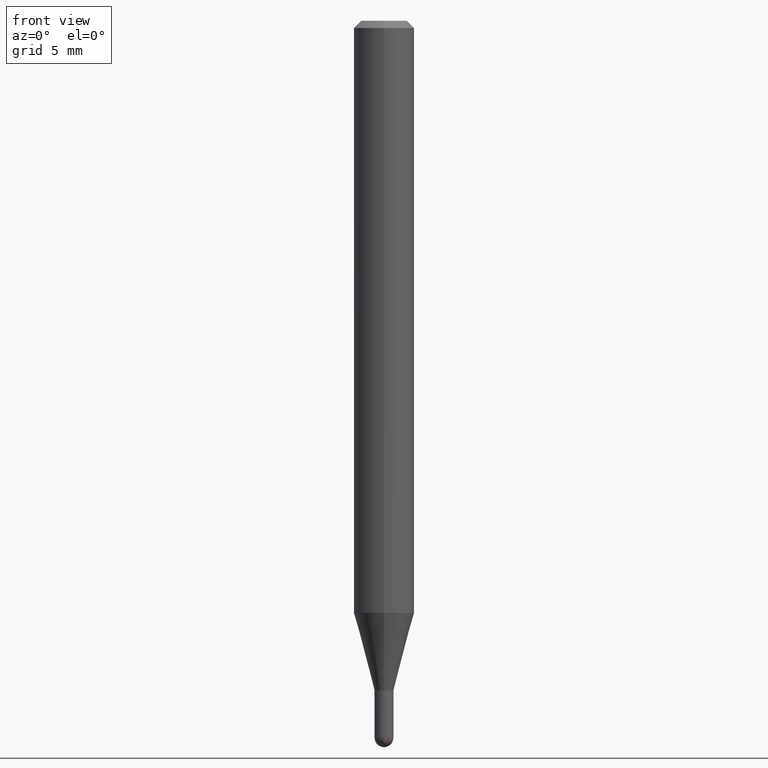
[diagram: clean part render]
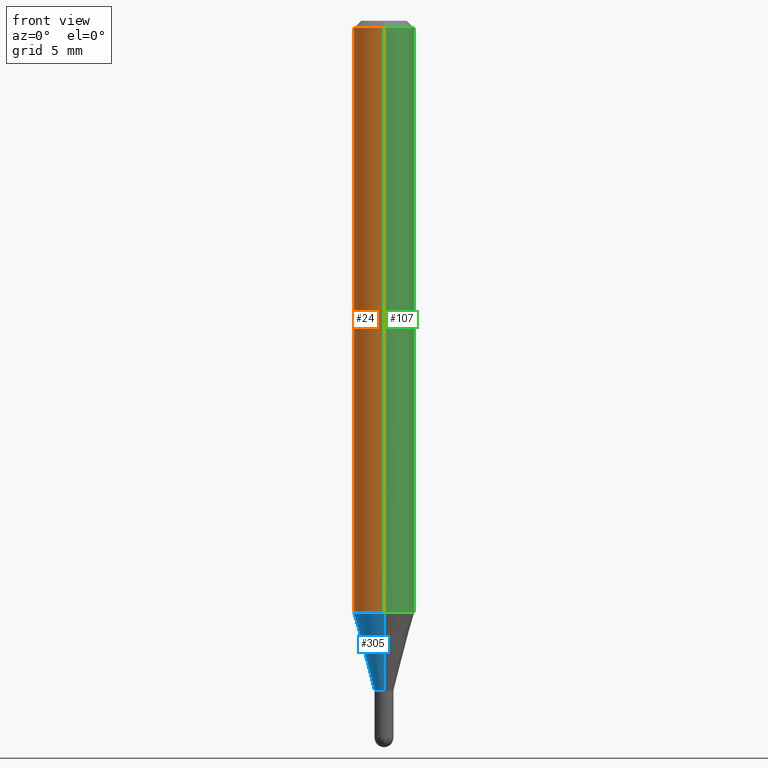
[diagram: same view with three faces highlighted in distinct colors, each labeled with its STEP entity id]
A machine part, front view with three faces highlighted in distinct colors.
Their STEP definitions:

[orange] entity #24 — the highlighted cylindrical surface (edge-blend (fillet) strip) has radius 1.5875 mm, axis along (-0, 0, 1).
#2 = CARTESIAN_POINT ( 'NONE',  ( -4.364351673553916201E-16, -0.06250000000000000000, 2.182161224139924499E-16 ) ) ;
#8 = FACE_OUTER_BOUND ( 'NONE', #492, .T. ) ;
#12 = EDGE_CURVE ( 'NONE', #282, #115, #324, .T. ) ;
#22 = CARTESIAN_POINT ( 'NONE',  ( 2.989658923416908872E-29, -4.268383521531617927E-15, -1.222521815274543844 ) ) ;
#24 = ADVANCED_FACE ( 'NONE', ( #8 ), #413, .T. ) ;
#37 = VERTEX_POINT ( 'NONE', #97 ) ;
#46 = ORIENTED_EDGE ( 'NONE', *, *, #419, .T. ) ;
#60 = DIRECTION ( 'NONE',  ( -6.982962677686265922E-15, -1.000000000000000000, 4.370956789862821150E-15 ) ) ;
#86 = ORIENTED_EDGE ( 'NONE', *, *, #152, .T. ) ;
#88 = EDGE_CURVE ( 'NONE', #115, #37, #105, .T. ) ;
#97 = CARTESIAN_POINT ( 'NONE',  ( -4.364351673553912750E-16, -0.06250000000000005551, -0.01499999999999979128 ) ) ;
#102 = DIRECTION ( 'NONE',  ( -2.445485132504990036E-29, 3.491457958623879198E-15, 1.000000000000000000 ) ) ;
#105 = CIRCLE ( 'NONE', #506, 0.06250000000000000000 ) ;
#115 = VERTEX_POINT ( 'NONE', #224 ) ;
#129 = AXIS2_PLACEMENT_3D ( 'NONE', #22, #102, #60 ) ;
#152 = EDGE_CURVE ( 'NONE', #402, #37, #476, .T. ) ;
#165 = VECTOR ( 'NONE', #195, 39.37007874015748143 ) ;
#188 = VECTOR ( 'NONE', #408, 39.37007874015748143 ) ;
#195 = DIRECTION ( 'NONE',  ( -2.445485132504990036E-29, 3.491457958623879198E-15, 1.000000000000000000 ) ) ;
#206 = CARTESIAN_POINT ( 'NONE',  ( 3.668227698757487488E-31, -5.237186937935821336E-17, -0.01500000000000000812 ) ) ;
#215 = CARTESIAN_POINT ( 'NONE',  ( 4.440892098500922971E-16, 0.06249999999999571176, -1.222521815274544066 ) ) ;
#224 = CARTESIAN_POINT ( 'NONE',  ( 4.440892098500925929E-16, 0.06249999999999995143, -0.01500000000000022669 ) ) ;
#257 = DIRECTION ( 'NONE',  ( -2.445485132504990036E-29, 3.491457958623879198E-15, 1.000000000000000000 ) ) ;
#282 = VERTEX_POINT ( 'NONE', #215 ) ;
#297 = DIRECTION ( 'NONE',  ( -2.445485132504990036E-29, 3.491457958623879198E-15, 1.000000000000000000 ) ) ;
#324 = LINE ( 'NONE', #375, #188 ) ;
#325 = CIRCLE ( 'NONE', #129, 0.06250000000000000000 ) ;
#368 = CARTESIAN_POINT ( 'NONE',  ( 0.000000000000000000, 0.000000000000000000, 0.000000000000000000 ) ) ;
#375 = CARTESIAN_POINT ( 'NONE',  ( 4.440892098500625669E-16, 0.06250000000000000000, -2.182161224139924499E-16 ) ) ;
#402 = VERTEX_POINT ( 'NONE', #460 ) ;
#408 = DIRECTION ( 'NONE',  ( -2.445485132504990036E-29, 3.491457958623879198E-15, 1.000000000000000000 ) ) ;
#413 = CYLINDRICAL_SURFACE ( 'NONE', #450, 0.06250000000000000000 ) ;
#415 = DIRECTION ( 'NONE',  ( -6.982962677686265922E-15, -1.000000000000000000, 3.483106191921935554E-15 ) ) ;
#419 = EDGE_CURVE ( 'NONE', #282, #402, #325, .T. ) ;
#450 = AXIS2_PLACEMENT_3D ( 'NONE', #368, #297, #452 ) ;
#452 = DIRECTION ( 'NONE',  ( -6.982962677686265922E-15, -1.000000000000000000, 3.491457958623879198E-15 ) ) ;
#460 = CARTESIAN_POINT ( 'NONE',  ( -4.364351673553619392E-16, -0.06250000000000428824, -1.222521815274543622 ) ) ;
#476 = LINE ( 'NONE', #2, #165 ) ;
#486 = ORIENTED_EDGE ( 'NONE', *, *, #88, .F. ) ;
#492 = EDGE_LOOP ( 'NONE', ( #499, #46, #86, #486 ) ) ;
#499 = ORIENTED_EDGE ( 'NONE', *, *, #12, .F. ) ;
#506 = AXIS2_PLACEMENT_3D ( 'NONE', #206, #257, #415 ) ;

[blue] entity #305 — the highlighted conical surface has half-angle 15 deg.
#10 = AXIS2_PLACEMENT_3D ( 'NONE', #367, #412, #166 ) ;
#22 = CARTESIAN_POINT ( 'NONE',  ( 2.989658923416908872E-29, -4.268383521531617927E-15, -1.222521815274543844 ) ) ;
#60 = DIRECTION ( 'NONE',  ( -6.982962677686265922E-15, -1.000000000000000000, 4.370956789862821150E-15 ) ) ;
#66 = LINE ( 'NONE', #386, #164 ) ;
#67 = CIRCLE ( 'NONE', #10, 0.01949999999999992017 ) ;
#102 = DIRECTION ( 'NONE',  ( -2.445485132504990036E-29, 3.491457958623879198E-15, 1.000000000000000000 ) ) ;
#112 = EDGE_CURVE ( 'NONE', #118, #402, #66, .T. ) ;
#118 = VERTEX_POINT ( 'NONE', #466 ) ;
#123 = CARTESIAN_POINT ( 'NONE',  ( 1.385558334732527668E-16, 0.01949999999999509417, -1.383000000000000451 ) ) ;
#129 = AXIS2_PLACEMENT_3D ( 'NONE', #22, #102, #60 ) ;
#141 = DIRECTION ( 'NONE',  ( -1.807323732225381415E-15, -0.2588190451025255134, 0.9659258262890669799 ) ) ;
#164 = VECTOR ( 'NONE', #141, 39.37007874015748854 ) ;
#166 = DIRECTION ( 'NONE',  ( -6.982962677686266711E-15, -1.000000000000000000, 0.000000000000000000 ) ) ;
#190 = ORIENTED_EDGE ( 'NONE', *, *, #419, .F. ) ;
#207 = AXIS2_PLACEMENT_3D ( 'NONE', #444, #256, #376 ) ;
#215 = CARTESIAN_POINT ( 'NONE',  ( 4.440892098500922971E-16, 0.06249999999999571176, -1.222521815274544066 ) ) ;
#252 = CONICAL_SURFACE ( 'NONE', #207, 0.01949999999999992017, 0.2617993877991578455 ) ;
#256 = DIRECTION ( 'NONE',  ( -2.445485132504990036E-29, 3.491457958623879198E-15, 1.000000000000000000 ) ) ;
#271 = ORIENTED_EDGE ( 'NONE', *, *, #355, .T. ) ;
#282 = VERTEX_POINT ( 'NONE', #215 ) ;
#285 = FACE_OUTER_BOUND ( 'NONE', #396, .T. ) ;
#305 = ADVANCED_FACE ( 'NONE', ( #285 ), #252, .T. ) ;
#325 = CIRCLE ( 'NONE', #129, 0.06250000000000000000 ) ;
#331 = LINE ( 'NONE', #123, #341 ) ;
#341 = VECTOR ( 'NONE', #489, 39.37007874015748143 ) ;
#355 = EDGE_CURVE ( 'NONE', #512, #118, #67, .T. ) ;
#363 = ORIENTED_EDGE ( 'NONE', *, *, #374, .F. ) ;
#367 = CARTESIAN_POINT ( 'NONE',  ( 3.382105938254402512E-29, -4.828686356776826992E-15, -1.383000000000000451 ) ) ;
#374 = EDGE_CURVE ( 'NONE', #512, #282, #331, .T. ) ;
#376 = DIRECTION ( 'NONE',  ( -6.982962677686266711E-15, -1.000000000000000000, 0.000000000000000000 ) ) ;
#386 = CARTESIAN_POINT ( 'NONE',  ( -1.361677722148478193E-16, -0.01950000000000474965, -1.383000000000000451 ) ) ;
#396 = EDGE_LOOP ( 'NONE', ( #363, #271, #480, #190 ) ) ;
#402 = VERTEX_POINT ( 'NONE', #460 ) ;
#412 = DIRECTION ( 'NONE',  ( -2.445485132504990036E-29, 3.491457958623879198E-15, 1.000000000000000000 ) ) ;
#419 = EDGE_CURVE ( 'NONE', #282, #402, #325, .T. ) ;
#444 = CARTESIAN_POINT ( 'NONE',  ( 3.382105938254402512E-29, -4.828686356776826992E-15, -1.383000000000000451 ) ) ;
#460 = CARTESIAN_POINT ( 'NONE',  ( -4.364351673553619392E-16, -0.06250000000000428824, -1.222521815274543622 ) ) ;
#466 = CARTESIAN_POINT ( 'NONE',  ( -1.361677722148478193E-16, -0.01950000000000474965, -1.383000000000000451 ) ) ;
#480 = ORIENTED_EDGE ( 'NONE', *, *, #112, .T. ) ;
#489 = DIRECTION ( 'NONE',  ( 1.839019923739652380E-15, 0.2588190451025322858, 0.9659258262890650926 ) ) ;
#496 = CARTESIAN_POINT ( 'NONE',  ( 2.913225216616727415E-16, 0.01949999999999509417, -1.383000000000000451 ) ) ;
#512 = VERTEX_POINT ( 'NONE', #496 ) ;

[green] entity #107 — the highlighted cylindrical surface (edge-blend (fillet) strip) has radius 1.5875 mm, axis along (-0, 0, 1).
#2 = CARTESIAN_POINT ( 'NONE',  ( -4.364351673553916201E-16, -0.06250000000000000000, 2.182161224139924499E-16 ) ) ;
#7 = DIRECTION ( 'NONE',  ( -2.445485132504990036E-29, 3.491457958623879198E-15, 1.000000000000000000 ) ) ;
#12 = EDGE_CURVE ( 'NONE', #282, #115, #324, .T. ) ;
#15 = DIRECTION ( 'NONE',  ( -6.982962677686265922E-15, -1.000000000000000000, 4.370956789862821150E-15 ) ) ;
#18 = CIRCLE ( 'NONE', #369, 0.06250000000000000000 ) ;
#37 = VERTEX_POINT ( 'NONE', #97 ) ;
#47 = CARTESIAN_POINT ( 'NONE',  ( 2.989658923416908872E-29, -4.268383521531617927E-15, -1.222521815274543844 ) ) ;
#63 = ORIENTED_EDGE ( 'NONE', *, *, #169, .F. ) ;
#97 = CARTESIAN_POINT ( 'NONE',  ( -4.364351673553912750E-16, -0.06250000000000005551, -0.01499999999999979128 ) ) ;
#107 = ADVANCED_FACE ( 'NONE', ( #505 ), #423, .T. ) ;
#115 = VERTEX_POINT ( 'NONE', #224 ) ;
#149 = DIRECTION ( 'NONE',  ( -2.445485132504990036E-29, 3.491457958623879198E-15, 1.000000000000000000 ) ) ;
#152 = EDGE_CURVE ( 'NONE', #402, #37, #476, .T. ) ;
#165 = VECTOR ( 'NONE', #195, 39.37007874015748143 ) ;
#169 = EDGE_CURVE ( 'NONE', #37, #115, #453, .T. ) ;
#188 = VECTOR ( 'NONE', #408, 39.37007874015748143 ) ;
#195 = DIRECTION ( 'NONE',  ( -2.445485132504990036E-29, 3.491457958623879198E-15, 1.000000000000000000 ) ) ;
#196 = EDGE_LOOP ( 'NONE', ( #280, #319, #63, #365 ) ) ;
#215 = CARTESIAN_POINT ( 'NONE',  ( 4.440892098500922971E-16, 0.06249999999999571176, -1.222521815274544066 ) ) ;
#224 = CARTESIAN_POINT ( 'NONE',  ( 4.440892098500925929E-16, 0.06249999999999995143, -0.01500000000000022669 ) ) ;
#225 = EDGE_CURVE ( 'NONE', #402, #282, #18, .T. ) ;
#244 = AXIS2_PLACEMENT_3D ( 'NONE', #339, #497, #421 ) ;
#280 = ORIENTED_EDGE ( 'NONE', *, *, #225, .T. ) ;
#282 = VERTEX_POINT ( 'NONE', #215 ) ;
#319 = ORIENTED_EDGE ( 'NONE', *, *, #12, .T. ) ;
#320 = CARTESIAN_POINT ( 'NONE',  ( 3.668227698757487488E-31, -5.237186937935821336E-17, -0.01500000000000000812 ) ) ;
#324 = LINE ( 'NONE', #375, #188 ) ;
#339 = CARTESIAN_POINT ( 'NONE',  ( 0.000000000000000000, 0.000000000000000000, 0.000000000000000000 ) ) ;
#365 = ORIENTED_EDGE ( 'NONE', *, *, #152, .F. ) ;
#369 = AXIS2_PLACEMENT_3D ( 'NONE', #47, #7, #15 ) ;
#375 = CARTESIAN_POINT ( 'NONE',  ( 4.440892098500625669E-16, 0.06250000000000000000, -2.182161224139924499E-16 ) ) ;
#401 = AXIS2_PLACEMENT_3D ( 'NONE', #320, #149, #511 ) ;
#402 = VERTEX_POINT ( 'NONE', #460 ) ;
#408 = DIRECTION ( 'NONE',  ( -2.445485132504990036E-29, 3.491457958623879198E-15, 1.000000000000000000 ) ) ;
#421 = DIRECTION ( 'NONE',  ( -6.982962677686265922E-15, -1.000000000000000000, 3.491457958623879198E-15 ) ) ;
#423 = CYLINDRICAL_SURFACE ( 'NONE', #244, 0.06250000000000000000 ) ;
#453 = CIRCLE ( 'NONE', #401, 0.06250000000000000000 ) ;
#460 = CARTESIAN_POINT ( 'NONE',  ( -4.364351673553619392E-16, -0.06250000000000428824, -1.222521815274543622 ) ) ;
#476 = LINE ( 'NONE', #2, #165 ) ;
#497 = DIRECTION ( 'NONE',  ( -2.445485132504990036E-29, 3.491457958623879198E-15, 1.000000000000000000 ) ) ;
#505 = FACE_OUTER_BOUND ( 'NONE', #196, .T. ) ;
#511 = DIRECTION ( 'NONE',  ( -6.982962677686265922E-15, -1.000000000000000000, 3.483106191921935554E-15 ) ) ;